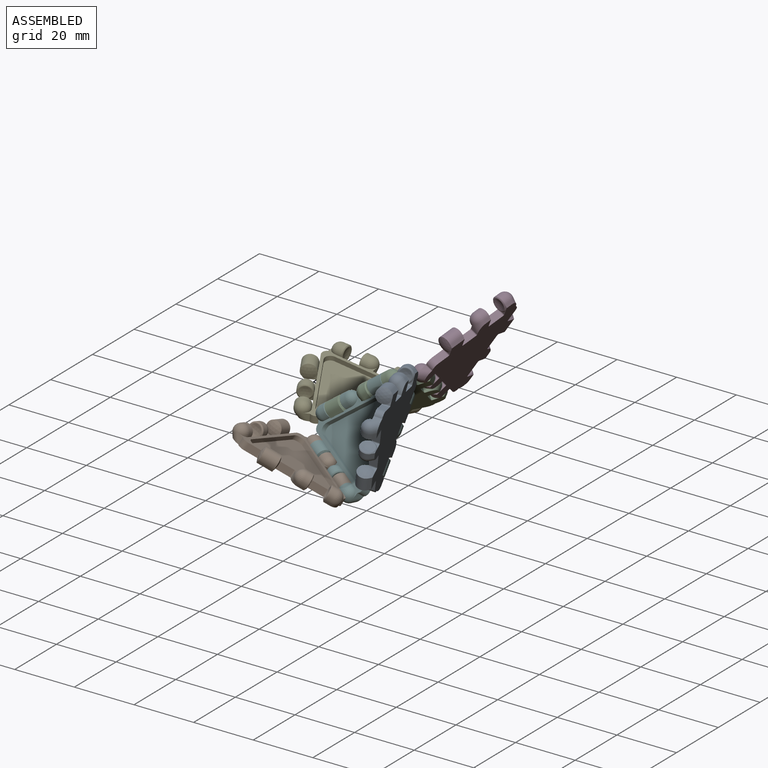
[diagram: assembled view]
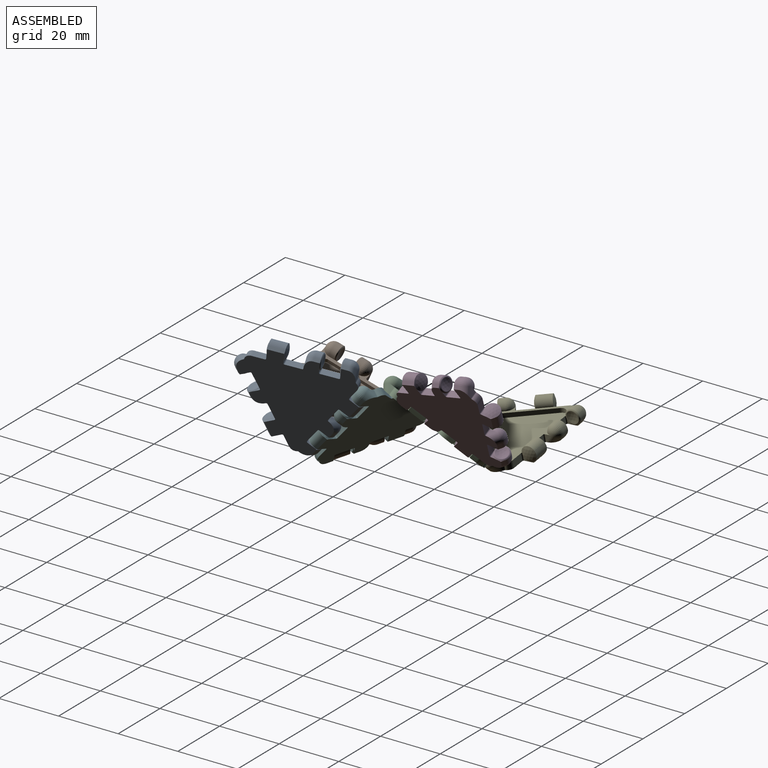
[diagram: assembled view, second angle]
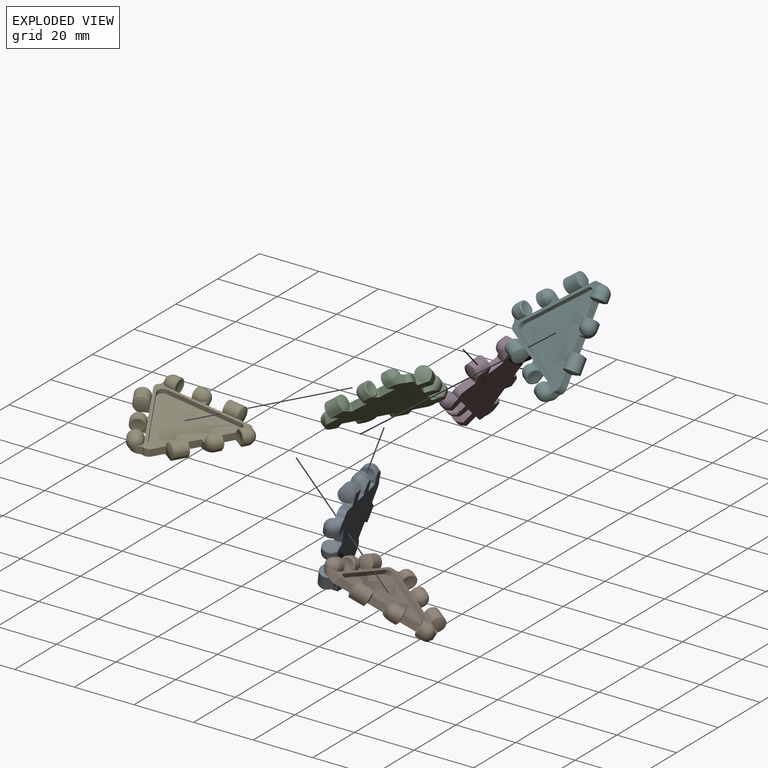
[diagram: exploded view]
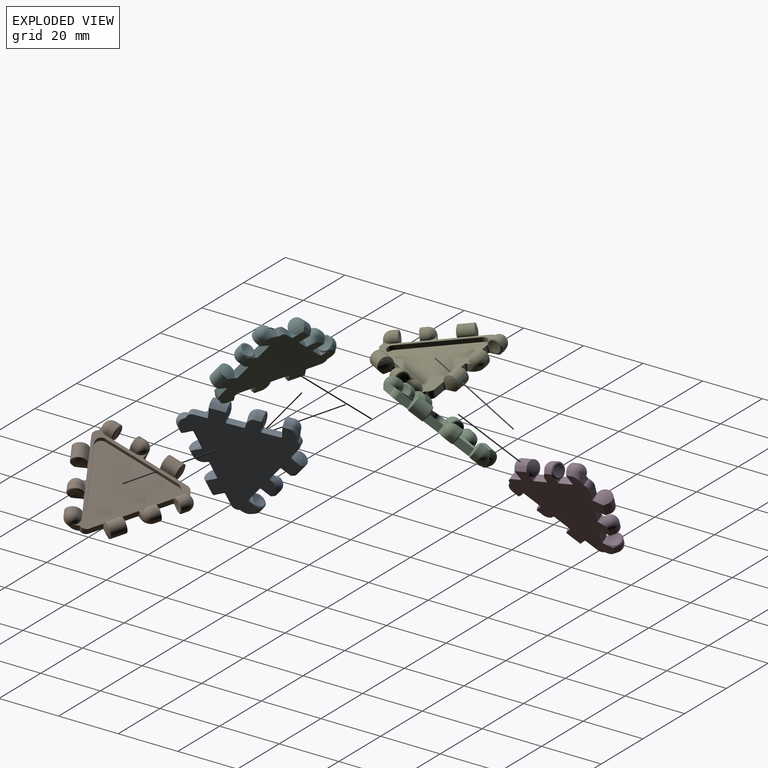
[diagram: exploded view, second angle]
ASSEMBLY  parts=6 mates=5
PART A: 123 faces, bbox 39.1x39.1x12.5 mm
  f0: plane 35.01x32.31mm, normal (0,0,1), area 112mm2, adj f1,f3,f6,f8,f9,f11,f12,f13
  f1: torus R=0.01mm, axis (1,0,0), area 24mm2, adj f0,f2,f3,f36
  f2: cylinder r=2.49mm len=4.09mm, axis (0,-0.64,0.77), area 8.6mm2, adj f1,f4,f5,f36
  f3: cylinder r=2.5mm len=5mm, axis (-1,0,0), area 19.4mm2, adj f0,f1,f4,f27
  f4: plane 2.02x0.9mm, normal (0,-0.77,-0.64), area 2.3mm2, adj f2,f3,f5,f27,f37
  f5: plane 36.71x33.87mm, normal (0,0,-1), area 670.2mm2, adj f2,f4,f7,f9,f10,f12,f14,f15
  f6: torus R=0.01mm, axis (1,0,0), area 24mm2, adj f0,f7,f8,f20
  f7: cylinder r=2.49mm len=4.09mm, axis (0,-0.64,0.77), area 8.6mm2, adj f5,f6,f20,f35
  f8: cylinder r=2.5mm len=5mm, axis (-1,0,0), area 19.4mm2, adj f0,f6,f22,f35
  f9: cylinder r=0.37mm len=2.5mm, axis (0,0,-1), area 1.2mm2, adj f0,f5,f10,f11,f16
  f10: plane 2.13x1.19mm, normal (1,0,0), area 0.7mm2, adj f5,f9,f11
  f11: sphere r=5.77mm, area 20.5mm2, adj f0,f9,f10,f30,f31
  f12: cylinder r=0.37mm len=2.5mm, axis (0,0,1), area 1.2mm2, adj f0,f5,f13,f14,f33
  f13: sphere r=5.77mm, area 20.5mm2, adj f0,f12,f14,f30,f32
  f14: plane 2.13x1.19mm, normal (-1,0,0), area 0.7mm2, adj f5,f12,f13
  f15: cylinder r=0.37mm len=2.5mm, axis (0,0,-1), area 1.5mm2, adj f0,f5,f16,f36
  f16: plane 5.03x2.5mm, normal (0,-1,0), area 12.6mm2, adj f0,f5,f9,f15
  f17: cylinder r=0.37mm len=2.5mm, axis (0,0,1), area 1.3mm2, adj f0,f5,f18,f27,f38
  f18: plane 5.39x2.5mm, normal (0,-1,0), area 13.5mm2, adj f0,f5,f17,f21
  f19: cylinder r=0.37mm len=2.5mm, axis (0,0,-1), area 0.8mm2, adj f0,f5,f20,f122
  f20: plane 2.51x2.14mm, normal (1,0,0), area 2.7mm2, adj f0,f5,f6,f7,f19
  f21: cylinder r=0.37mm len=2.5mm, axis (0,0,1), area 1.3mm2, adj f0,f5,f18,f22,f23
  f22: cone r=2.51mm half-angle=50deg, axis (1,0,0), area 4.1mm2, adj f0,f5,f8,f21,f23,f24,f34,f35
  f23: plane 1.91x1.17mm, normal (-1,0,0), area 0.7mm2, adj f5,f21,f22
  f24: torus R=2.03mm, axis (1,0,0), area 5.4mm2, adj f22,f25
  f25: sphere r=5.83mm, area 0mm2, adj f24
  f26: torus R=2.03mm, axis (-1,0,0), area 5.4mm2, adj f27,f28
  f27: cone r=2.29mm half-angle=50deg, axis (-1,0,0), area 4.1mm2, adj f0,f3,f4,f5,f17,f26,f37,f38
  f28: sphere r=5.83mm, area 11.7mm2, adj f26
  f29: plane 5x0.89mm, normal (0,-0.77,-0.64), area 5.8mm2, adj f5,f30,f31,f32
  f30: cylinder r=2.5mm len=5mm, axis (-1,0,0), area 48mm2, adj f0,f11,f13,f29
  f31: plane 1.92x0.89mm, normal (1,0,0), area 0.2mm2, adj f5,f11,f29
  f32: plane 1.92x0.89mm, normal (-1,0,0), area 0.2mm2, adj f5,f13,f29
  f33: plane 3.87x2.5mm, normal (0,-1,0), area 9.7mm2, adj f0,f5,f12,f121
  f34: plane 1.56x0.73mm, normal (-1,0,0), area 0.2mm2, adj f5,f22,f35
  f35: plane 2.02x0.9mm, normal (0,-0.77,-0.64), area 2.3mm2, adj f5,f7,f8,f22,f34
  f36: plane 2.51x2.14mm, normal (-1,0,0), area 2.7mm2, adj f0,f1,f2,f5,f15
  f37: plane 1.56x0.73mm, normal (1,0,0), area 0.2mm2, adj f4,f5,f27
  f38: plane 1.91x1.17mm, normal (1,0,0), area 0.7mm2, adj f5,f17,f27
  f39: plane 1.66x1.17mm, normal (-0.5,-0.87,0), area 0.7mm2, adj f5,f50,f60
  f40: plane 1.35x0.78mm, normal (-0.5,-0.87,0), area 0.2mm2, adj f5,f50,f72
  f41: plane 2.51x1.85mm, normal (0.5,0.87,0), area 2.7mm2, adj f0,f5,f62,f74,f75
  f42: plane 2.13x1.66mm, normal (-0.66,0.38,-0.64), area 2.3mm2, adj f5,f43,f55,f69,f70
  f43: plane 1.35x0.78mm, normal (0.5,0.87,0), area 0.2mm2, adj f5,f42,f55
  f44: plane 3.35x2.5mm, normal (-0.87,0.5,0), area 9.7mm2, adj f0,f5,f65,f120
  f45: plane 1.66x0.96mm, normal (0.5,0.87,0), area 0.2mm2, adj f5,f48,f64
  f46: plane 1.66x0.96mm, normal (-0.5,-0.87,0), area 0.2mm2, adj f5,f48,f66
  f47: cylinder r=2.5mm len=6.83mm, axis (0.5,0.87,0), area 48mm2, adj f0,f48,f64,f66
  f48: plane 4.7x3.15mm, normal (-0.66,0.38,-0.64), area 5.8mm2, adj f5,f45,f46,f47
  f49: sphere r=5.83mm, area 11.7mm2, adj f51
  f50: cone r=2.29mm half-angle=50deg, axis (0.5,0.87,0), area 4.1mm2, adj f0,f5,f39,f40,f51,f60,f72,f73
  f51: torus R=2.03mm, axis (0.5,0.87,0), area 5.4mm2, adj f49,f50
  f52: sphere r=5.83mm, area 0mm2, adj f53
  f53: torus R=2.03mm, axis (-0.5,-0.87,0), area 5.4mm2, adj f52,f55
  f54: plane 1.66x1.17mm, normal (0.5,0.87,0), area 0.7mm2, adj f5,f55,f56
  f55: cone r=2.51mm half-angle=50deg, axis (-0.5,-0.87,0), area 4.1mm2, adj f0,f5,f42,f43,f53,f54,f56,f69
  f56: cylinder r=0.37mm len=2.5mm, axis (0,0,1), area 1.3mm2, adj f0,f5,f54,f55,f59
  f57: plane 2.51x1.85mm, normal (-0.5,-0.87,0), area 2.7mm2, adj f0,f5,f58,f70,f71
  f58: cylinder r=0.37mm len=2.5mm, axis (0,0,-1), area 0.8mm2, adj f0,f5,f57,f121
  f59: plane 4.67x2.7mm, normal (-0.87,0.5,0), area 13.5mm2, adj f0,f5,f56,f60
  f60: cylinder r=0.37mm len=2.5mm, axis (0,0,1), area 1.3mm2, adj f0,f5,f39,f50,f59
  f61: plane 4.36x2.52mm, normal (-0.87,0.5,0), area 12.6mm2, adj f0,f5,f62,f68
  f62: cylinder r=0.37mm len=2.5mm, axis (0,0,-1), area 1.5mm2, adj f0,f5,f41,f61
  f63: plane 1.84x1.19mm, normal (0.5,0.87,0), area 0.7mm2, adj f5,f64,f65
  f64: sphere r=5.77mm, area 20.5mm2, adj f0,f45,f47,f63,f65
  f65: cylinder r=0.37mm len=2.5mm, axis (0,0,1), area 1.2mm2, adj f0,f5,f44,f63,f64
  f66: sphere r=5.77mm, area 20.5mm2, adj f0,f46,f47,f67,f68
  f67: plane 1.84x1.19mm, normal (-0.5,-0.87,0), area 0.7mm2, adj f5,f66,f68
  f68: cylinder r=0.37mm len=2.5mm, axis (0,0,-1), area 1.2mm2, adj f0,f5,f61,f66,f67
  f69: cylinder r=2.5mm len=5.34mm, axis (0.5,0.87,0), area 19.4mm2, adj f0,f42,f55,f71
  f70: cylinder r=2.49mm len=4.16mm, axis (-0.56,0.32,0.77), area 8.6mm2, adj f5,f42,f57,f71
  f71: torus R=0.01mm, axis (-0.5,-0.87,0), area 24mm2, adj f0,f57,f69,f70
  f72: plane 2.12x1.66mm, normal (-0.66,0.38,-0.64), area 2.3mm2, adj f5,f40,f50,f73,f74
  f73: cylinder r=2.5mm len=5.34mm, axis (0.5,0.87,0), area 19.4mm2, adj f0,f50,f72,f75
  f74: cylinder r=2.49mm len=4.71mm, axis (-0.56,0.32,0.77), area 8.6mm2, adj f5,f41,f72,f75
  f75: torus R=0.01mm, axis (-0.5,-0.87,0), area 24mm2, adj f0,f41,f73,f74
  f76: plane 1.66x1.17mm, normal (-0.5,0.87,0), area 0.7mm2, adj f5,f87,f97
  f77: plane 1.35x0.78mm, normal (-0.5,0.87,0), area 0.2mm2, adj f5,f87,f109
  f78: plane 2.51x1.85mm, normal (0.5,-0.87,0), area 2.7mm2, adj f0,f5,f99,f111,f112
  f79: plane 2.12x1.66mm, normal (0.66,0.38,-0.64), area 2.3mm2, adj f5,f80,f92,f106,f107
  f80: plane 1.35x0.78mm, normal (0.5,-0.87,0), area 0.2mm2, adj f5,f79,f92
  f81: plane 3.35x2.5mm, normal (0.87,0.5,0), area 9.7mm2, adj f0,f5,f102,f122
  f82: plane 1.66x0.96mm, normal (0.5,-0.87,0), area 0.2mm2, adj f5,f85,f101
  f83: plane 1.66x0.96mm, normal (-0.5,0.87,0), area 0.2mm2, adj f5,f85,f103
  f84: cylinder r=2.5mm len=6.83mm, axis (0.5,-0.87,0), area 48mm2, adj f0,f85,f101,f103
  f85: plane 4.7x3.15mm, normal (0.66,0.38,-0.64), area 5.8mm2, adj f5,f82,f83,f84
  f86: sphere r=5.83mm, area 11.7mm2, adj f88
  f87: cone r=2.29mm half-angle=50deg, axis (0.5,-0.87,0), area 4.1mm2, adj f0,f5,f76,f77,f88,f97,f109,f110
  f88: torus R=2.03mm, axis (0.5,-0.87,0), area 5.4mm2, adj f86,f87
  f89: sphere r=5.83mm, area 427.2mm2, adj f90
  f90: torus R=2.03mm, axis (-0.5,0.87,0), area 5.4mm2, adj f89,f92
  f91: plane 1.66x1.17mm, normal (0.5,-0.87,0), area 0.7mm2, adj f5,f92,f93
  f92: cone r=2.51mm half-angle=50deg, axis (-0.5,0.87,0), area 4.1mm2, adj f0,f5,f79,f80,f90,f91,f93,f106
  f93: cylinder r=0.37mm len=2.5mm, axis (0,0,1), area 1.3mm2, adj f0,f5,f91,f92,f96
  f94: plane 2.51x1.85mm, normal (-0.5,0.87,0), area 2.7mm2, adj f0,f5,f95,f107,f108
  f95: cylinder r=0.37mm len=2.5mm, axis (0,0,-1), area 0.8mm2, adj f0,f5,f94,f120
  f96: plane 4.67x2.7mm, normal (0.87,0.5,0), area 13.5mm2, adj f0,f5,f93,f97
  f97: cylinder r=0.37mm len=2.5mm, axis (0,0,1), area 1.3mm2, adj f0,f5,f76,f87,f96
  f98: plane 4.36x2.52mm, normal (0.87,0.5,0), area 12.6mm2, adj f0,f5,f99,f105
  f99: cylinder r=0.37mm len=2.5mm, axis (0,0,-1), area 1.5mm2, adj f0,f5,f78,f98
  f100: plane 1.84x1.19mm, normal (0.5,-0.87,0), area 0.7mm2, adj f5,f101,f102
  f101: sphere r=5.77mm, area 20.5mm2, adj f0,f82,f84,f100,f102
  f102: cylinder r=0.37mm len=2.5mm, axis (0,0,1), area 1.2mm2, adj f0,f5,f81,f100,f101
  f103: sphere r=5.77mm, area 20.5mm2, adj f0,f83,f84,f104,f105
  f104: plane 1.84x1.19mm, normal (-0.5,0.87,0), area 0.7mm2, adj f5,f103,f105
  f105: cylinder r=0.37mm len=2.5mm, axis (0,0,-1), area 1.2mm2, adj f0,f5,f98,f103,f104
  f106: cylinder r=2.5mm len=5.34mm, axis (0.5,-0.87,0), area 19.4mm2, adj f0,f79,f92,f108
  f107: cylinder r=2.49mm len=4.71mm, axis (0.56,0.32,0.77), area 8.6mm2, adj f5,f79,f94,f108
  f108: torus R=0.01mm, axis (-0.5,0.87,0), area 24mm2, adj f0,f94,f106,f107
  f109: plane 2.13x1.66mm, normal (0.66,0.38,-0.64), area 2.3mm2, adj f5,f77,f87,f110,f111
  f110: cylinder r=2.5mm len=5.34mm, axis (0.5,-0.87,0), area 19.4mm2, adj f0,f87,f109,f112
  f111: cylinder r=2.49mm len=4.16mm, axis (0.56,0.32,0.77), area 8.6mm2, adj f5,f78,f109,f112
  f112: torus R=0.01mm, axis (-0.5,0.87,0), area 24mm2, adj f0,f78,f110,f111
  f113: plane 28.61x25.31mm, normal (0,0,1), area 422.4mm2, adj f114,f115,f116,f117,f118,f119
  f114: plane 21.31x12.3mm, normal (-0.87,-0.5,0), area 36.9mm2, adj f0,f113,f117,f118
  f115: plane 21.31x12.3mm, normal (0.87,-0.5,0), area 36.9mm2, adj f0,f113,f117,f119
  f116: plane 24.61x1.5mm, normal (0,1,0), area 36.9mm2, adj f0,f113,f118,f119
  f117: cylinder r=2mm len=3.46mm, axis (0,0,-1), area 6.3mm2, adj f0,f113,f114,f115
  f118: cylinder r=2mm len=3mm, axis (0,0,-1), area 6.3mm2, adj f0,f113,f114,f116
  f119: cylinder r=2mm len=3mm, axis (0,0,-1), area 6.3mm2, adj f0,f113,f115,f116
  f120: cylinder r=2mm len=2.5mm, axis (0,0,-1), area 7mm2, adj f0,f5,f44,f95
  f121: cylinder r=2mm len=2.5mm, axis (0,0,-1), area 7mm2, adj f0,f5,f33,f58
  f122: cylinder r=2mm len=2.54mm, axis (0,0,-1), area 7mm2, adj f0,f5,f19,f81
PART B: same geometry as A
PART C: same geometry as A
PART D: same geometry as A
PART E: same geometry as A
PART F: same geometry as A
PLACE A rot(axis=(-0.45,-0.52,0.72),130.9deg) t=(11.25,-28.07,-19.39)mm
PLACE B rot(axis=(0.16,0.23,0.96),151.3deg) t=(-16.25,-27.75,-50.25)mm
PLACE C rot(axis=(-0.41,0,0.91),124.4deg) t=(-4.86,6.07,-35.67)mm fixed
PLACE D rot(axis=(0.5,-0.07,-0.87),171.5deg) t=(1.97,26.32,-28.35)mm
PLACE E rot(axis=(0.14,0.08,0.99),60.7deg) t=(-24.34,7.06,-47.59)mm
PLACE F rot(axis=(0.84,-0.09,-0.54),64.3deg) t=(-12.19,-22.14,-48.9)mm
MATE revolute F.f53 <-> C.f53  axis (0.8,0.11,0.58) through (-6.62,-9.62,-26.49)mm
MATE revolute D.f88 <-> C.f27  axis (-0.3,0.75,-0.58) through (-7.59,16.14,-39.05)mm
MATE revolute E.f27 <-> C.f88  axis (0.5,0.87,0) through (-16.66,14.61,-45.53)mm
MATE revolute B.f30 <-> F.f27  axis (0.83,-0.53,-0.18) through (-5.34,-30.68,-51.27)mm
MATE revolute A.f88 <-> F.f90  axis (-0.03,0.64,0.76) through (2.82,-15.47,-28.31)mm
